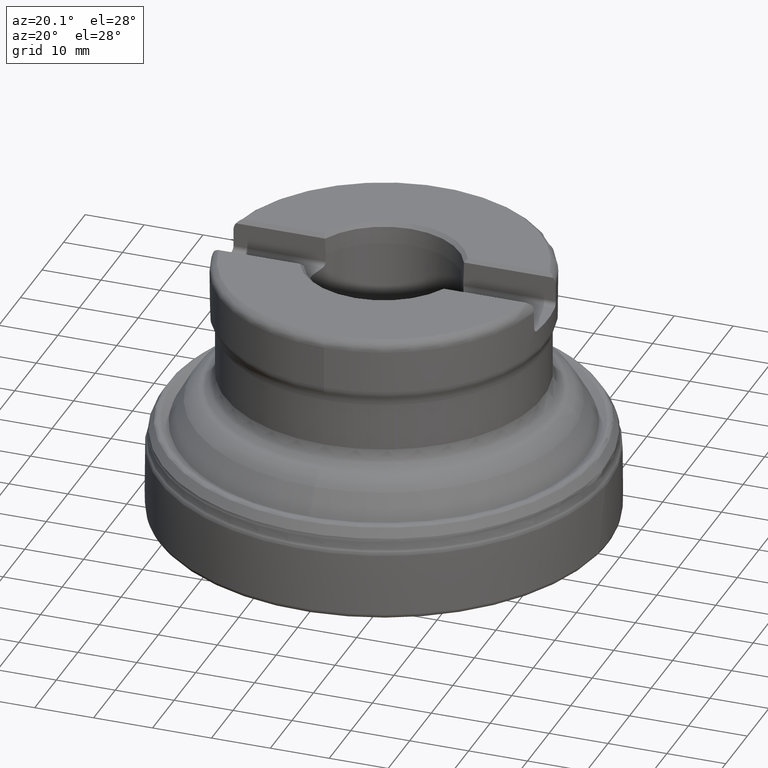
[diagram: clean part render]
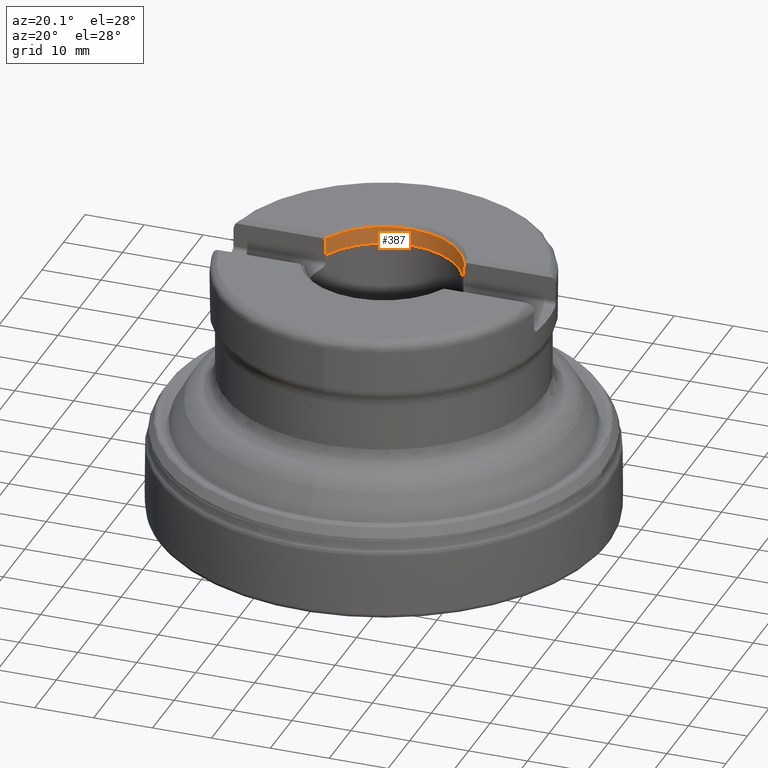
[diagram: same view with one face highlighted and labeled with its STEP entity id]
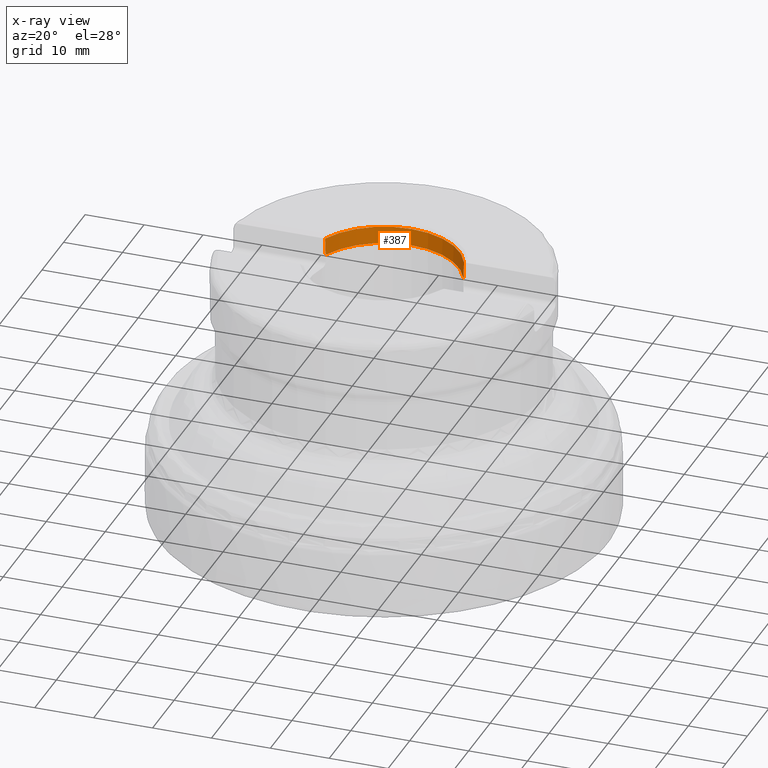
[diagram: x-ray of the same camera — body ghosted, the highlighted face saturated]
A machine part, auxiliary view. The second image highlights one B-rep face of the part: STEP entity #387.
The next image is the same camera in x-ray: the body ghosted, the highlighted face saturated — about 0% of this face is hidden behind the body in this view.
In plain terms, the highlighted conical surface has half-angle 2 deg.
Its self-contained STEP definition (entity closure, byte-faithful):
#161=CONICAL_SURFACE('',#1262,12.7,2.);
#387=ADVANCED_FACE('',(#467),#161,.F.);
#467=FACE_OUTER_BOUND('',#517,.T.);
#517=EDGE_LOOP('',(#793,#794,#795,#796));
#642=CIRCLE('',#1259,12.7);
#643=CIRCLE('',#1261,12.8005120802137);
#793=ORIENTED_EDGE('',*,*,#1080,.F.);
#794=ORIENTED_EDGE('',*,*,#1093,.T.);
#795=ORIENTED_EDGE('',*,*,#1074,.F.);
#796=ORIENTED_EDGE('',*,*,#1092,.T.);
#966=VERTEX_POINT('',#2205);
#967=VERTEX_POINT('',#2206);
#970=VERTEX_POINT('',#2221);
#971=VERTEX_POINT('',#2229);
#1074=EDGE_CURVE('',#966,#967,#1166,.T.);
#1080=EDGE_CURVE('',#970,#971,#1169,.T.);
#1092=EDGE_CURVE('',#966,#971,#642,.T.);
#1093=EDGE_CURVE('',#970,#967,#643,.T.);
#1166=B_SPLINE_CURVE_WITH_KNOTS('',3,(#2198,#2199,#2200,#2201,#2202,#2203,
#2204),.UNSPECIFIED.,.F.,.F.,(4,3,4),(0.,0.613639292103291,1.),
 .UNSPECIFIED.);
#1169=B_SPLINE_CURVE_WITH_KNOTS('',3,(#2222,#2223,#2224,#2225,#2226,#2227,
#2228),.UNSPECIFIED.,.F.,.F.,(4,3,4),(0.,0.38636070789671,1.),
 .UNSPECIFIED.);
#1259=AXIS2_PLACEMENT_3D('',#2269,#1467,#1468);
#1261=AXIS2_PLACEMENT_3D('',#2271,#1471,#1472);
#1262=AXIS2_PLACEMENT_3D('',#2272,#1473,#1474);
#1467=DIRECTION('',(0.,-1.17145536458252E-15,-1.));
#1468=DIRECTION('',(0.,-1.,1.09273919746571E-15));
#1471=DIRECTION('',(0.,1.17145536458252E-15,1.));
#1472=DIRECTION('',(0.,1.,-1.08415879933944E-15));
#1473=DIRECTION('',(0.,1.17145536458252E-15,1.));
#1474=DIRECTION('',(0.,-1.,1.01998052206544E-15));
#2198=CARTESIAN_POINT('',(-11.6892589585482,4.96500000000005,40.95));
#2199=CARTESIAN_POINT('',(-11.7115960419743,4.96500000000005,41.5387432219118));
#2200=CARTESIAN_POINT('',(-11.7339233541799,4.96500000000005,42.1274868146249));
#2201=CARTESIAN_POINT('',(-11.7562410611818,4.96500000000005,42.7162307713644));
#2202=CARTESIAN_POINT('',(-11.7702927772348,4.96500000000005,43.086916832763));
#2203=CARTESIAN_POINT('',(-11.7843406854802,4.96500000000005,43.4576030385246));
#2204=CARTESIAN_POINT('',(-11.7983848265641,4.96500000000005,43.8282893869926));
#2205=CARTESIAN_POINT('',(-11.6892589585482,4.96500000000005,40.95));
#2206=CARTESIAN_POINT('',(-11.7983848265641,4.96500000000005,43.8282893869926));
#2221=CARTESIAN_POINT('',(11.7983848265641,4.96500000000005,43.8282893869926));
#2222=CARTESIAN_POINT('',(11.7983848265641,4.96500000000005,43.8282893869926));
#2223=CARTESIAN_POINT('',(11.7843406854802,4.96500000000005,43.4576030385246));
#2224=CARTESIAN_POINT('',(11.7702927772348,4.96500000000005,43.086916832763));
#2225=CARTESIAN_POINT('',(11.7562410611818,4.96500000000005,42.7162307713644));
#2226=CARTESIAN_POINT('',(11.7339233541799,4.96500000000005,42.1274868146249));
#2227=CARTESIAN_POINT('',(11.7115960419743,4.96500000000005,41.5387432219118));
#2228=CARTESIAN_POINT('',(11.6892589585482,4.96500000000005,40.95));
#2229=CARTESIAN_POINT('',(11.6892589585482,4.96500000000005,40.95));
#2269=CARTESIAN_POINT('',(0.,4.79710971796544E-14,40.95));
#2271=CARTESIAN_POINT('',(0.,5.13428847228678E-14,43.8282893869926));
#2272=CARTESIAN_POINT('',(0.,4.79710971796544E-14,40.95));